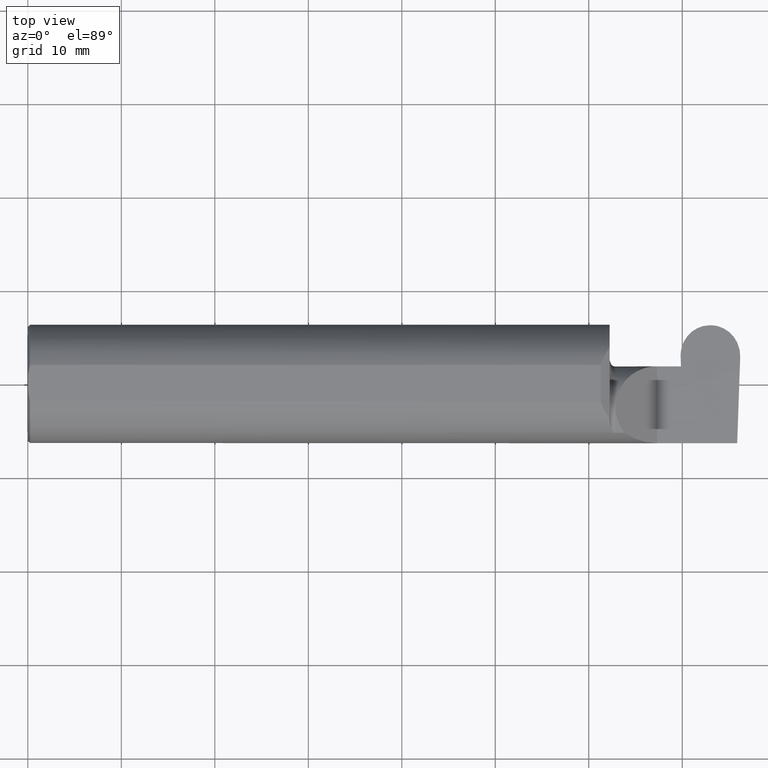
[diagram: clean part render]
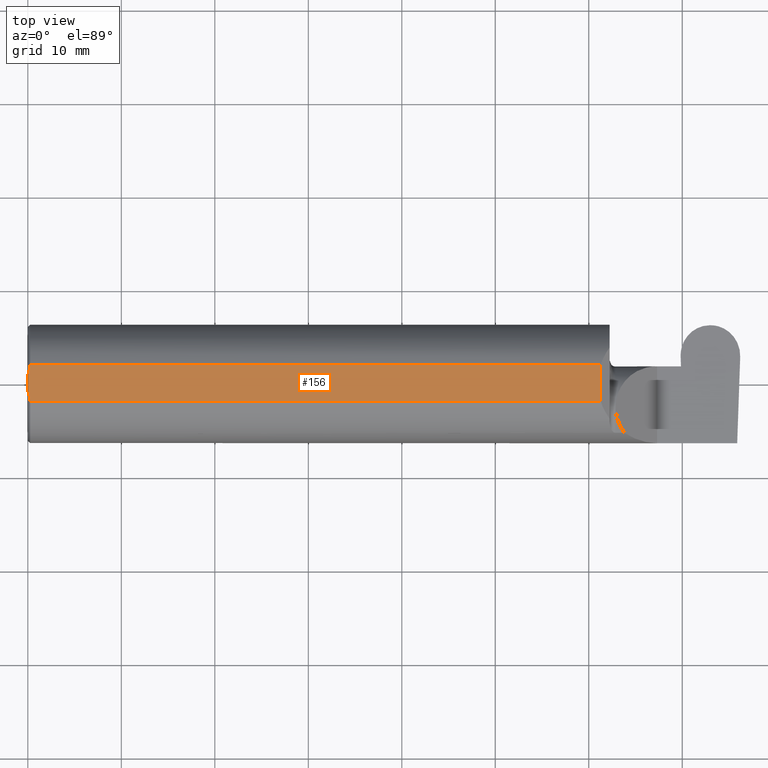
[diagram: same view with one face highlighted and labeled with its STEP entity id]
A machine part, top view. The second image highlights one B-rep face of the part: STEP entity #156.
In plain terms, the highlighted planar face has unit normal (0, 0, 1).
Its self-contained STEP definition (entity closure, byte-faithful):
#45 = VERTEX_POINT ( 'NONE', #692 ) ;
#49 = CARTESIAN_POINT ( 'NONE',  ( 0.009999999999999927350, 0.07650098038587520299, 0.2378499999999998671 ) ) ;
#56 = CARTESIAN_POINT ( 'NONE',  ( 0.009999999999999927350, -0.07650098038587520299, 0.2378499999999998671 ) ) ;
#126 = CARTESIAN_POINT ( 'NONE',  ( 0.000000000000000000, 0.07650098038587520299, 0.2378499999999998671 ) ) ;
#134 = DIRECTION ( 'NONE',  ( 0.000000000000000000, 0.000000000000000000, 1.000000000000000000 ) ) ;
#135 = VERTEX_POINT ( 'NONE', #596 ) ;
#156 = ADVANCED_FACE ( 'NONE', ( #329 ), #710, .T. ) ;
#160 = LINE ( 'NONE', #422, #499 ) ;
#167 = DIRECTION ( 'NONE',  ( 0.000000000000000000, 1.000000000000000000, 0.000000000000000000 ) ) ;
#168 = B_SPLINE_CURVE_WITH_KNOTS ( 'NONE', 3,
 ( #56, #319, #693, #641 ),
 .UNSPECIFIED., .F., .F.,
 ( 4, 4 ),
 ( 0.01317593029100226111, 0.01435802289191457325 ),
 .UNSPECIFIED. ) ;
#177 = DIRECTION ( 'NONE',  ( -0.000000000000000000, 1.000000000000000000, -0.000000000000000000 ) ) ;
#182 = LINE ( 'NONE', #455, #775 ) ;
#189 = CARTESIAN_POINT ( 'NONE',  ( 0.002005502345409073024, 0.04647171987093980799, 0.2378499999999998671 ) ) ;
#210 = VERTEX_POINT ( 'NONE', #655 ) ;
#214 = ORIENTED_EDGE ( 'NONE', *, *, #454, .T. ) ;
#216 = ORIENTED_EDGE ( 'NONE', *, *, #752, .T. ) ;
#276 = DIRECTION ( 'NONE',  ( 1.000000000000000000, 0.000000000000000000, -0.000000000000000000 ) ) ;
#286 = CARTESIAN_POINT ( 'NONE',  ( 0.000000000000000000, 0.03090954545120574992, 0.2378499999999998671 ) ) ;
#299 = CARTESIAN_POINT ( 'NONE',  ( 2.412149999999998240, 0.07650098038587530014, 0.2378499999999998948 ) ) ;
#302 = ORIENTED_EDGE ( 'NONE', *, *, #507, .F. ) ;
#306 = VECTOR ( 'NONE', #177, 39.37007874015748143 ) ;
#311 = LINE ( 'NONE', #829, #306 ) ;
#319 = CARTESIAN_POINT ( 'NONE',  ( 0.005459900170181729989, -0.06167314502012864741, 0.2378499999999998671 ) ) ;
#329 = FACE_OUTER_BOUND ( 'NONE', #702, .T. ) ;
#340 = VERTEX_POINT ( 'NONE', #299 ) ;
#375 = LINE ( 'NONE', #126, #631 ) ;
#396 = VERTEX_POINT ( 'NONE', #574 ) ;
#422 = CARTESIAN_POINT ( 'NONE',  ( 2.412149999999998240, -0.2500000000000000555, 0.2378499999999998948 ) ) ;
#442 = ORIENTED_EDGE ( 'NONE', *, *, #810, .F. ) ;
#454 = EDGE_CURVE ( 'NONE', #210, #340, #160, .T. ) ;
#455 = CARTESIAN_POINT ( 'NONE',  ( 0.000000000000000000, -0.07650098038587520299, 0.2378499999999998671 ) ) ;
#457 = DIRECTION ( 'NONE',  ( -1.000000000000000000, -0.000000000000000000, -0.000000000000000000 ) ) ;
#488 = B_SPLINE_CURVE_WITH_KNOTS ( 'NONE', 3,
 ( #286, #189, #522, #49 ),
 .UNSPECIFIED., .F., .F.,
 ( 4, 4 ),
 ( 0.01593449416844765903, 0.01712021724825598876 ),
 .UNSPECIFIED. ) ;
#499 = VECTOR ( 'NONE', #167, 39.37007874015748143 ) ;
#507 = EDGE_CURVE ( 'NONE', #135, #608, #488, .T. ) ;
#522 = CARTESIAN_POINT ( 'NONE',  ( 0.005466242398876407227, 0.06169385855649833772, 0.2378499999999998671 ) ) ;
#536 = CARTESIAN_POINT ( 'NONE',  ( 3.501298404146671484, 0.2498499999999998500, 0.2378499999999998671 ) ) ;
#574 = CARTESIAN_POINT ( 'NONE',  ( 0.009999999999999927350, -0.07650098038587520299, 0.2378499999999998671 ) ) ;
#592 = EDGE_CURVE ( 'NONE', #45, #135, #311, .T. ) ;
#596 = CARTESIAN_POINT ( 'NONE',  ( 0.000000000000000000, 0.03090954545120574992, 0.2378499999999998671 ) ) ;
#601 = ORIENTED_EDGE ( 'NONE', *, *, #607, .T. ) ;
#607 = EDGE_CURVE ( 'NONE', #396, #210, #182, .T. ) ;
#608 = VERTEX_POINT ( 'NONE', #689 ) ;
#626 = AXIS2_PLACEMENT_3D ( 'NONE', #536, #134, #276 ) ;
#629 = DIRECTION ( 'NONE',  ( 1.000000000000000000, 0.000000000000000000, 0.000000000000000000 ) ) ;
#631 = VECTOR ( 'NONE', #457, 39.37007874015748143 ) ;
#641 = CARTESIAN_POINT ( 'NONE',  ( 0.000000000000000000, -0.03090954545120560767, 0.2378499999999998671 ) ) ;
#646 = ORIENTED_EDGE ( 'NONE', *, *, #592, .F. ) ;
#655 = CARTESIAN_POINT ( 'NONE',  ( 2.412149999999998240, -0.07650098038587530014, 0.2378499999999998948 ) ) ;
#689 = CARTESIAN_POINT ( 'NONE',  ( 0.009999999999999927350, 0.07650098038587520299, 0.2378499999999998671 ) ) ;
#692 = CARTESIAN_POINT ( 'NONE',  ( 0.000000000000000000, -0.03090954545120560767, 0.2378499999999998671 ) ) ;
#693 = CARTESIAN_POINT ( 'NONE',  ( 0.001983148254845710189, -0.04629825796642594860, 0.2378499999999998671 ) ) ;
#702 = EDGE_LOOP ( 'NONE', ( #601, #214, #216, #302, #646, #442 ) ) ;
#710 = PLANE ( 'NONE',  #626 ) ;
#752 = EDGE_CURVE ( 'NONE', #340, #608, #375, .T. ) ;
#775 = VECTOR ( 'NONE', #629, 39.37007874015748143 ) ;
#810 = EDGE_CURVE ( 'NONE', #396, #45, #168, .T. ) ;
#829 = CARTESIAN_POINT ( 'NONE',  ( 0.000000000000000000, 0.2498499999999998500, 0.2378499999999998671 ) ) ;